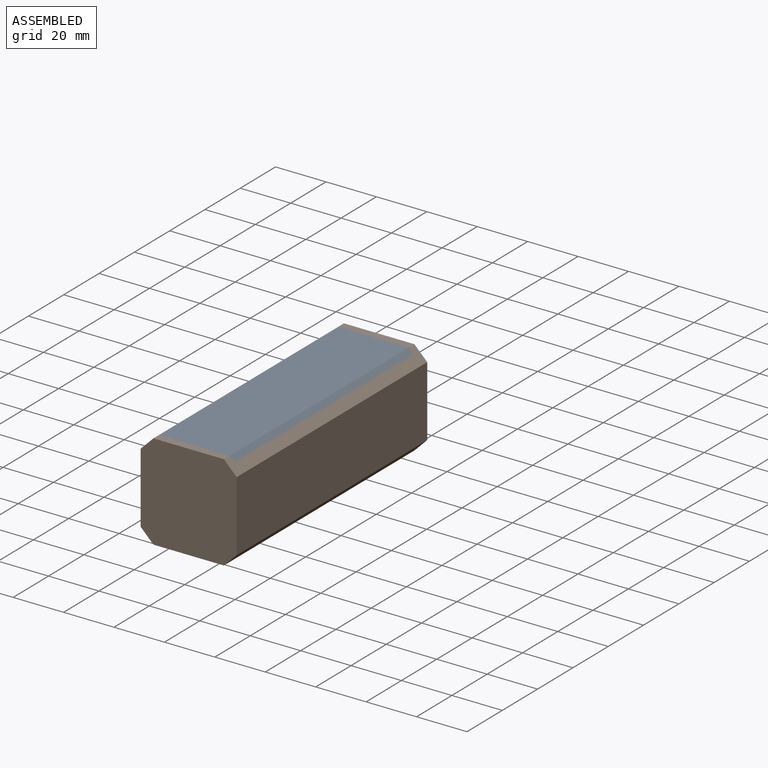
[diagram: assembled view]
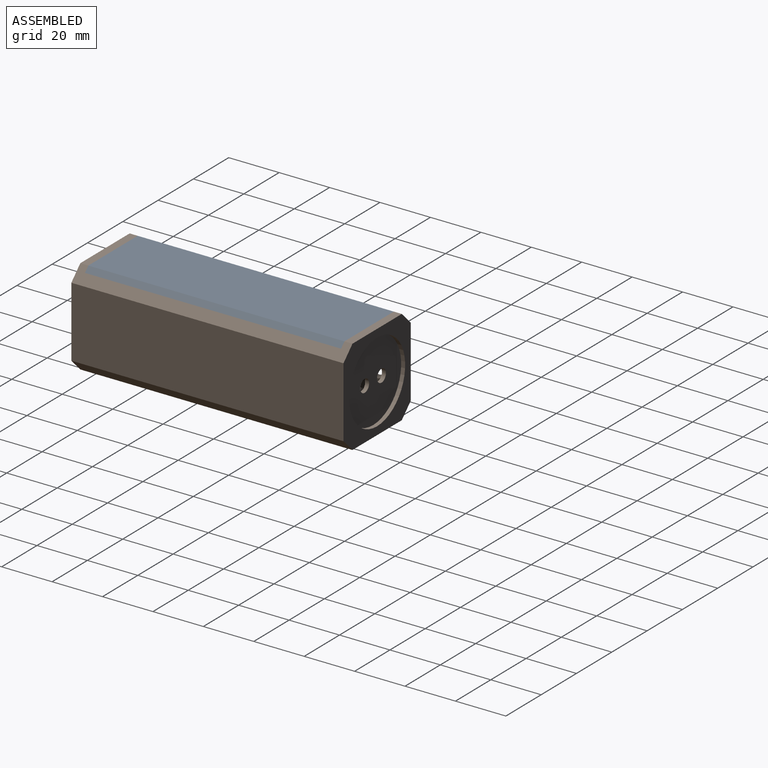
[diagram: assembled view, second angle]
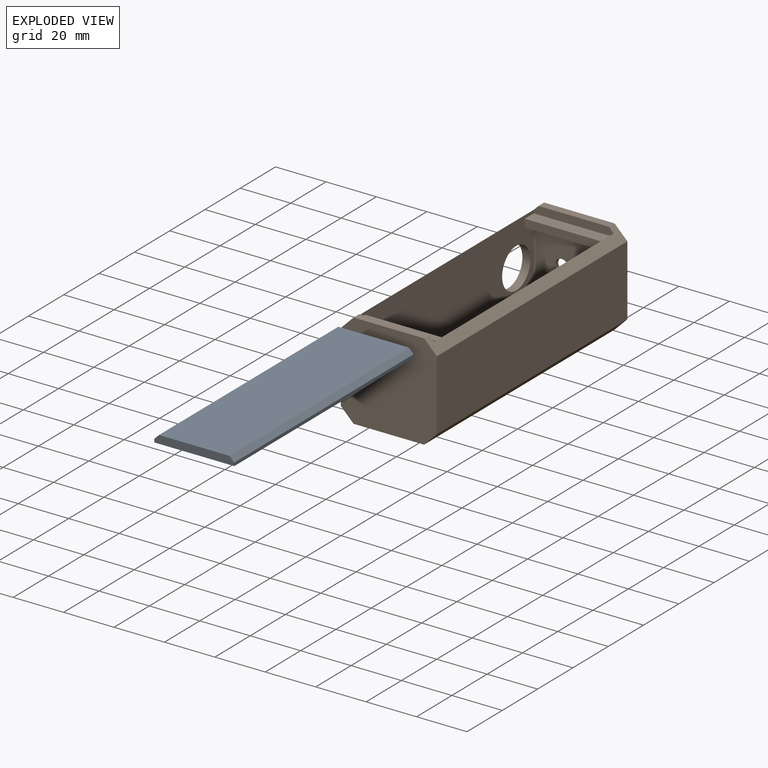
[diagram: exploded view]
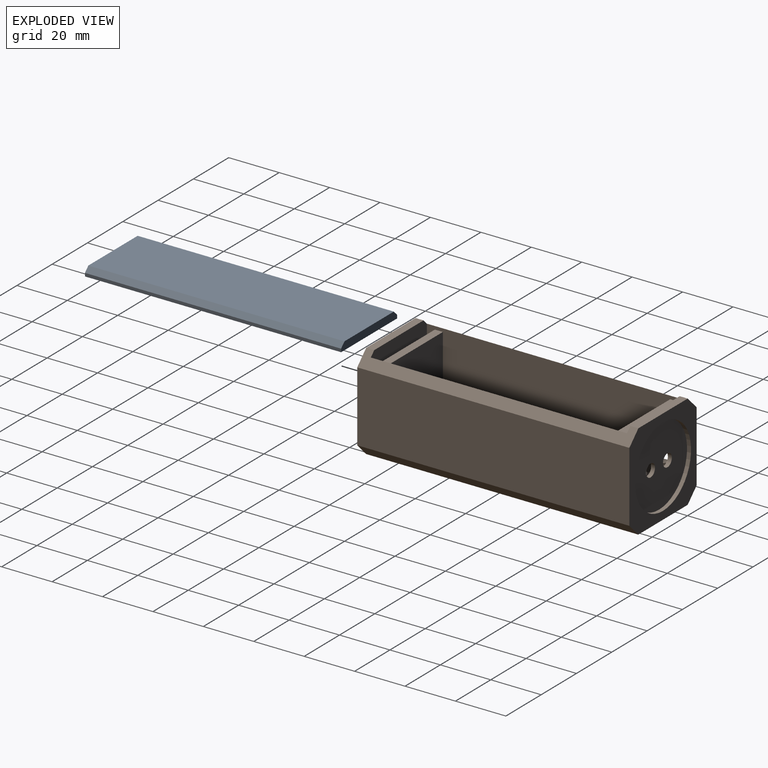
[diagram: exploded view, second angle]
ASSEMBLY  parts=2 mates=2
PART A: 8 faces, bbox 31.8x3.2x101.6 mm
  f0: plane 101.6x1.27mm, normal (-1,0,0), area 129mm2, adj f1,f3,f5,f7
  f1: plane 31.75x3.18mm, normal (0,0,-1), area 97.2mm2, adj f0,f2,f4,f5,f6,f7
  f2: plane 101.6x1.27mm, normal (1,0,0), area 129mm2, adj f1,f3,f5,f6
  f3: plane 31.75x3.18mm, normal (0,0,1), area 97.2mm2, adj f0,f2,f4,f5,f6,f7
  f4: plane 101.6x27.94mm, normal (0,-1,0), area 2838.7mm2, adj f1,f3,f6,f7
  f5: plane 101.6x31.75mm, normal (0,1,0), area 3225.8mm2, adj f0,f1,f2,f3
  f6: plane 101.6x1.91mm, normal (0.71,-0.71,0), area 273.7mm2, adj f1,f2,f3,f4
  f7: plane 101.6x1.91mm, normal (-0.71,-0.71,0), area 273.7mm2, adj f0,f1,f3,f4
PART B: 37 faces, bbox 38.1x108x38.1 mm
  f0: plane 27.94x3.18mm, normal (0,0,1), area 88.7mm2, adj f16,f21,f34,f35
  f1: plane 31.75x25.4mm, normal (0,-1,0), area 767.2mm2, adj f7,f13,f14,f24,f25,f32
  f2: plane 31.75x28.58mm, normal (0,1,0), area 907.3mm2, adj f7,f13,f14,f29
  f3: plane 34.93x31.75mm, normal (0,-1,0), area 967.7mm2, adj f5,f6,f13,f14,f17,f27,f28,f29
  f4: plane 27.94x3.18mm, normal (0,0,1), area 88.7mm2, adj f15,f19,f34,f35
  f5: plane 11.11x3.18mm, normal (0,0,1), area 35.3mm2, adj f3,f14,f15,f27
  f6: plane 107.95x27.94mm, normal (0,0,-1), area 2985.9mm2, adj f3,f15,f19,f21,f27,f28,f33,f36
  f7: plane 95.25x31.75mm, normal (0,0,1), area 1401.2mm2, adj f1,f2,f8,f9,f10,f11,f13,f14
  f8: plane 73.03x3.18mm, normal (1,0,0), area 231.9mm2, adj f7,f9,f11,f12
  f9: plane 22.23x3.18mm, normal (0,1,0), area 70.6mm2, adj f7,f8,f10,f12
  f10: plane 73.03x3.18mm, normal (-1,0,0), area 231.9mm2, adj f7,f9,f11,f12
  f11: plane 22.23x3.18mm, normal (0,-1,0), area 70.6mm2, adj f7,f8,f10,f12
  f12: plane 73.03x22.23mm, normal (0,0,1), area 1623mm2, adj f8,f9,f10,f11
  f13: plane 101.6x29.85mm, normal (-1,0,0), area 2925.4mm2, adj f1,f2,f3,f7,f15,f16,f17,f29
  f14: plane 101.6x29.85mm, normal (1,0,0), area 2724.3mm2, adj f1,f2,f3,f5,f7,f15,f16,f26
  f15: plane 38.1x31.75mm, normal (0,1,0), area 1064.9mm2, adj f4,f5,f6,f13,f14,f17,f27,f28
  f16: plane 31.75x3.18mm, normal (0,-1,0), area 97.2mm2, adj f0,f13,f14,f30,f34,f35
  f17: plane 11.11x3.18mm, normal (0,0,1), area 35.3mm2, adj f3,f13,f15,f28
  f18: plane 107.95x27.94mm, normal (1,0,0), area 3016.1mm2, adj f19,f21,f35,f36
  f19: plane 38.1x38.1mm, normal (0,-1,0), area 1400mm2, adj f4,f6,f18,f20,f33,f34,f35,f36
  f20: plane 107.95x27.94mm, normal (-1,0,0), area 2815.1mm2, adj f19,f21,f26,f33,f34
  f21: plane 38.1x38.1mm, normal (0,1,0), area 608.3mm2, adj f0,f6,f18,f20,f22,f33,f34,f35
  f22: cylinder r=15.88mm len=31.75mm, axis (0,1,0), area 158.3mm2, adj f21,f23
  f23: plane 31.75x31.75mm, normal (0,1,0), area 752.5mm2, adj f22,f24,f25
  f24: cylinder r=2.5mm len=5mm, axis (0,1,0), area 24.9mm2, adj f1,f23
  f25: cylinder r=2.5mm len=5mm, axis (0,1,0), area 24.9mm2, adj f1,f23
  f26: cylinder r=8mm len=16mm, axis (-1,0,0), area 159.6mm2, adj f14,f20
  f27: plane 6.35x3.18mm, normal (1,0,0), area 20.2mm2, adj f3,f5,f6,f15
  f28: plane 6.35x3.18mm, normal (-1,0,0), area 20.2mm2, adj f3,f6,f15,f17
  f29: plane 31.75x3.18mm, normal (0,0,1), area 100.8mm2, adj f2,f3,f13,f14
  f30: plane 31.75x5.08mm, normal (0,0,1), area 161.3mm2, adj f13,f14,f16,f31
  f31: plane 31.75x3.18mm, normal (0,-1,0), area 100.8mm2, adj f13,f14,f30,f32
  f32: plane 31.75x5.08mm, normal (0,0,-1), area 161.3mm2, adj f1,f13,f14,f31
  f33: plane 107.95x5.08mm, normal (-0.71,0,-0.71), area 775.5mm2, adj f6,f19,f20,f21
  f34: plane 107.95x5.08mm, normal (-0.71,0,0.71), area 501.8mm2, adj f0,f4,f14,f15,f16,f19,f20,f21
  f35: plane 107.95x5.08mm, normal (0.71,0,0.71), area 501.8mm2, adj f0,f4,f13,f15,f16,f18,f19,f21
  f36: plane 107.95x5.08mm, normal (0.71,0,-0.71), area 775.5mm2, adj f6,f18,f19,f21
PLACE A rot(axis=(-1,0,0),90deg) t=(-165.6,-100.67,65.76)mm
PLACE B t=(-168.77,4.11,30.84)mm
MATE fastened A.f3 <-> B.f16  axis (0,1,0) through (-149.72,0.93,67.31)mm
MATE planar A.f5 <-> B.f30  axis (0,0,-1) through (-165.6,0.93,65.76)mm
